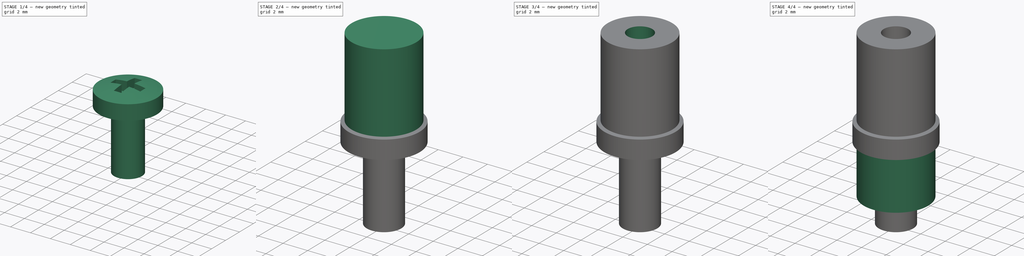
[diagram: build sequence overview — one tinted view per stage of 4, left to right]
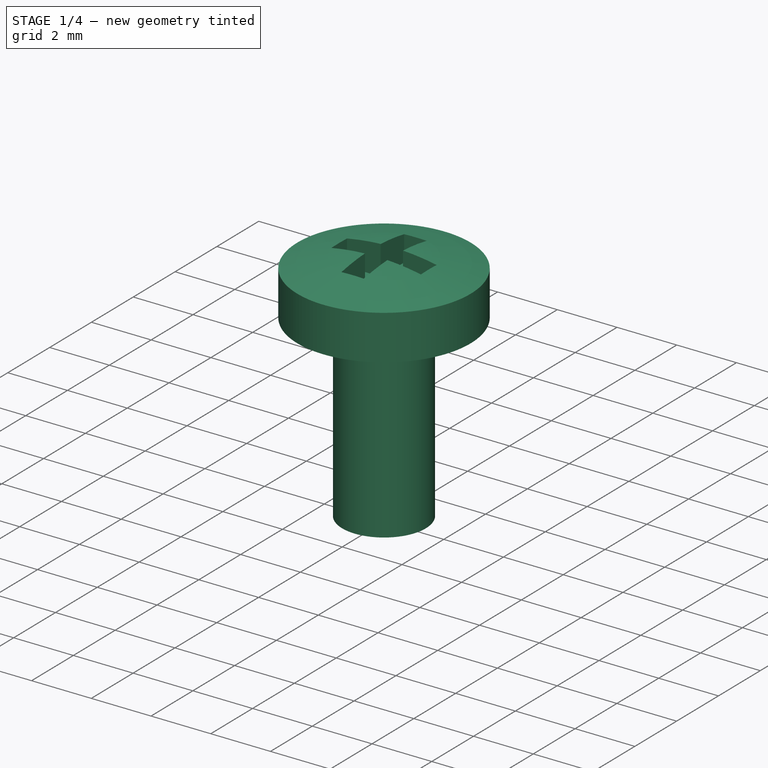
[diagram: stage 1 of 4 — iso view after this stage's code; geometry added in this stage tinted green]
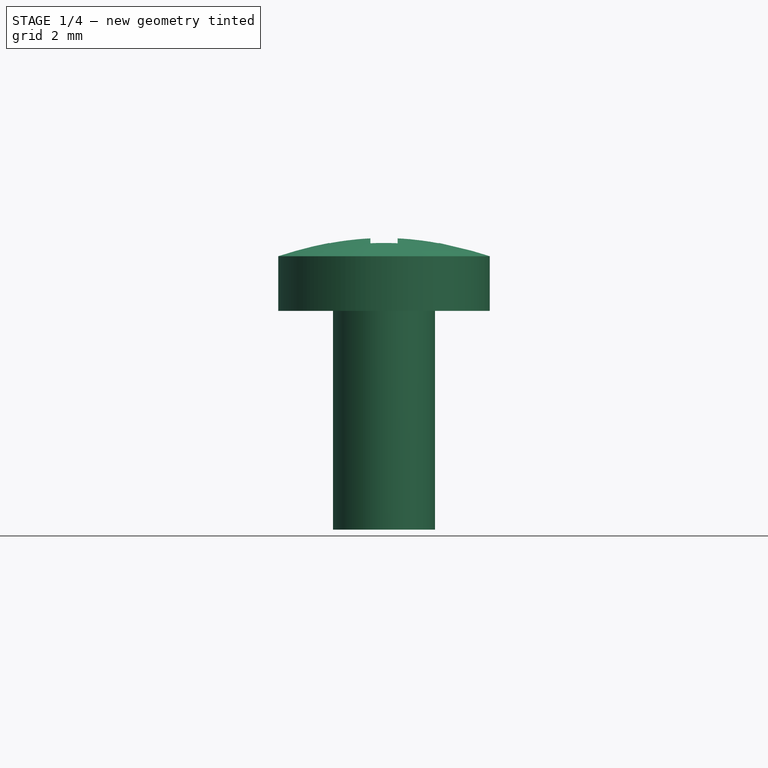
[diagram: stage 1 of 4 — front view after this stage's code; geometry added in this stage tinted green]
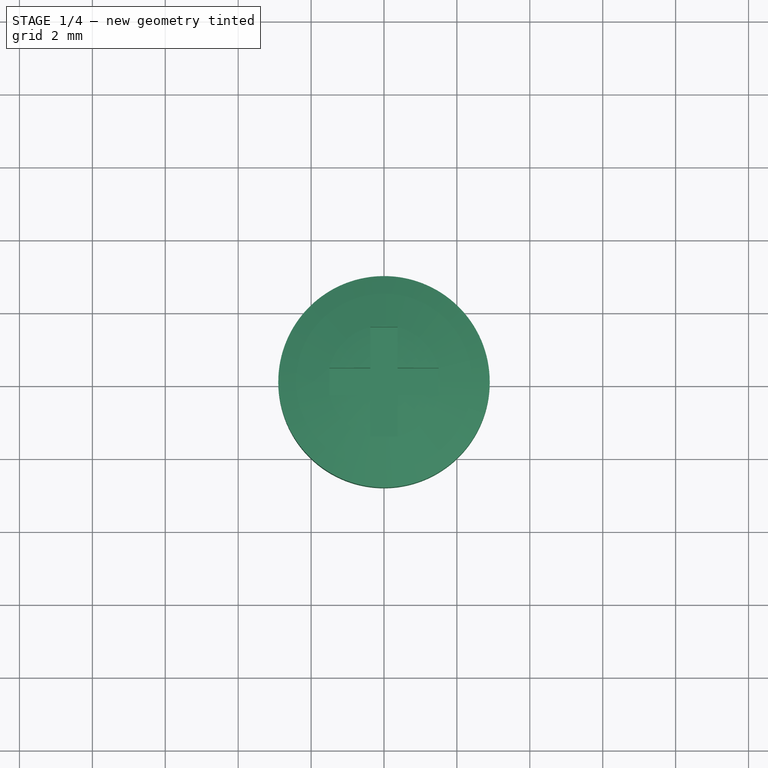
[diagram: stage 1 of 4 — top view after this stage's code; geometry added in this stage tinted green]
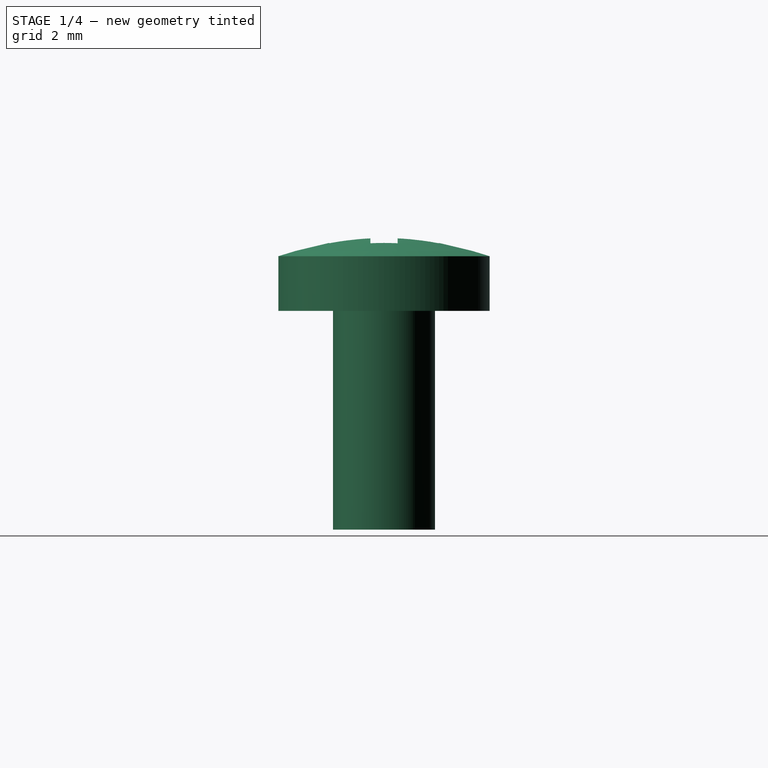
[diagram: stage 1 of 4 — right view after this stage's code; geometry added in this stage tinted green]
FCSTD DOCUMENT  (FreeCAD 0.18R16131 (Git))
Label: #8XX-XXX - Standoff Stack
License: All rights reserved
LicenseURL: http://en.wikipedia.org/wiki/All_rights_reserved
objects: Sketcher::SketchObject×12, PartDesign::Body×6, PartDesign::Pad×5, PartDesign::Pocket×5, PartDesign::Revolution×2
note: 42 computed .brp shape members not serialized (recipe doc carries the construction recipe); baked Part::Feature solids carry a one-line shape summary decoded from their .brp

FEATURE [PartDesign::Body] Body003  label="Screw_M3x6_T_2.0_Panhead"
  Group = -> [Sketch007,Revolution,Sketch008,Pocket003]
  Origin = -> Origin003
  Placement = pos=(0,0,11.4) rot=(0,0,1;0rad)
  Tip = -> Pocket003
FEATURE [Sketcher::SketchObject] Sketch009
  MapMode = 5
  Support = -> [XY_Plane004]
  sketch-geometry (2):
    g0: Circle CenterX=0 CenterY=0 CenterZ=0 NormalX=0 NormalY=0 NormalZ=1 AngleXU=0 Radius=1.5
    g1: Circle CenterX=0 CenterY=0 CenterZ=0 NormalX=0 NormalY=0 NormalZ=1 AngleXU=0 Radius=2.8
  constraints (4):
    c: Coincident(g0,g-1)
    c: Coincident(g1,g0)
    c: Diameter(g1) = 5.6
    c: Diameter(g0) = 3
FEATURE [PartDesign::Pad] Pad004
  Length = 1
  Length2 = 100
  Profile = -> Sketch009
  Type = 0
FEATURE [PartDesign::Body] Body004  label="Washer_M3_ID_3.0_OD_5.6_T_0.8_Plastic001"
  Group = -> [Sketch009,Pad004]
  Origin = -> Origin004
  Placement = pos=(0,0,10.4) rot=(0,0,1;0rad)
  Tip = -> Pad004
FEATURE [Sketcher::SketchObject] Sketch010
  MapMode = 5
  Placement = pos=(0,0,0) rot=(1,0,0;1.5708rad)
  Support = -> [XZ_Plane005]
  sketch-geometry (11):
    g0: LineSegment StartX=0 StartY=-6 StartZ=0 EndX=-1.4 EndY=-6 EndZ=0
    g1: LineSegment StartX=-1.4 StartY=-6 StartZ=0 EndX=-1.4 EndY=0 EndZ=0
    g2: LineSegment StartX=-1.4 StartY=0 StartZ=0 EndX=-2.9 EndY=0 EndZ=0
    g3: LineSegment StartX=-2.9 StartY=0 StartZ=0 EndX=-2.9 EndY=1.5 EndZ=0
    g4: LineSegment StartX=0 StartY=-6 StartZ=0 EndX=0 EndY=2 EndZ=0
    g5: Circle [constr] CenterX=0 CenterY=2 CenterZ=0 NormalX=0 NormalY=0 NormalZ=1 AngleXU=0 Radius=0.3
    g6: Circle [constr] CenterX=-1.27 CenterY=2.02886 CenterZ=0 NormalX=0 NormalY=0 NormalZ=1 AngleXU=0 Radius=0.3
    g7: Circle [constr] CenterX=-2.9 CenterY=1.5 CenterZ=0 NormalX=0 NormalY=0 NormalZ=1 AngleXU=0 Radius=0.3
    g8: BSplineCurve PolesCount=3 KnotsCount=2 Degree=2 IsPeriodic=0
    g9: GeomPoint [constr] X=0 Y=2 Z=0
    g10: GeomPoint [constr] X=-2.9 Y=1.5 Z=0
  constraints (26):
    c: PointOnObject(g0,g-2)
    c: Horizontal(g0)
    c: Coincident(g0,g1)
    c: PointOnObject(g1,g-1)
    c: Vertical(g1)
    c: Coincident(g1,g2)
    c: PointOnObject(g2,g-1)
    c: Coincident(g2,g3)
    c: Vertical(g3)
    c: Coincident(g0,g4)
    c: PointOnObject(g4,g-2)
    c: DistanceX(g0,g0) = 1.4
    c: DistanceX(g2,g-1) = 2.9
    c: DistanceY(g3,g3) = 1.5
    c: DistanceY(g-1,g4) = 2
    c: DistanceY(g0,g-1) = 6
    c: Coincident(g8,g4)
    c: Radius(g5) = 0.3
    c: Equal(g5,g6)
    c: Equal(g5,g7)
    c: Coincident(g8,g3)
    c: InternalAlignment(g5,g8)
    c: InternalAlignment(g6,g8)
    c: InternalAlignment(g7,g8)
    c: InternalAlignment(g9,g8)
    c: InternalAlignment(g10,g8)
FEATURE [PartDesign::Revolution] Revolution001
  Angle = 360
  Axis = (0,2e-16,1)
  Base = (0,0,0)
  Placement = pos=(0,0,0) rot=(1,0,0;1.5708rad)
  Profile = -> Sketch010
  ReferenceAxis = -> Sketch010 [V_Axis]
FEATURE [Sketcher::SketchObject] Sketch011
  AttachmentOffset = pos=(0,0,1) rot=(0,0,1;0rad)
  MapMode = 5
  Placement = pos=(0,0,1) rot=(0,0,1;0rad)
  Support = -> [XY_Plane005]
  sketch-geometry (12):
    g0: LineSegment StartX=0.375 StartY=1.5 StartZ=0 EndX=-0.375 EndY=1.5 EndZ=0
    g1: LineSegment StartX=-0.375 StartY=1.5 StartZ=0 EndX=-0.375 EndY=0.375 EndZ=0
    g2: LineSegment StartX=-0.375 StartY=0.375 StartZ=0 EndX=-1.5 EndY=0.375 EndZ=0
    g3: LineSegment StartX=-1.5 StartY=0.375 StartZ=0 EndX=-1.5 EndY=-0.375 EndZ=0
    g4: LineSegment StartX=-1.5 StartY=-0.375 StartZ=0 EndX=-0.375 EndY=-0.375 EndZ=0
    g5: LineSegment StartX=-0.375 StartY=-0.375 StartZ=0 EndX=-0.375 EndY=-1.5 EndZ=0
    g6: LineSegment StartX=-0.375 StartY=-1.5 StartZ=0 EndX=0.375 EndY=-1.5 EndZ=0
    g7: LineSegment StartX=0.375 StartY=-1.5 StartZ=0 EndX=0.375 EndY=-0.375 EndZ=0
    g8: LineSegment StartX=0.375 StartY=-0.375 StartZ=0 EndX=1.5 EndY=-0.375 EndZ=0
    g9: LineSegment StartX=1.5 StartY=-0.375 StartZ=0 EndX=1.5 EndY=0.375 EndZ=0
    g10: LineSegment StartX=1.5 StartY=0.375 StartZ=0 EndX=0.375 EndY=0.375 EndZ=0
    g11: LineSegment StartX=0.375 StartY=0.375 StartZ=0 EndX=0.375 EndY=1.5 EndZ=0
  constraints (32):
    c: Coincident(g0,g1)
    c: Vertical(g1)
    c: Coincident(g1,g2)
    c: Horizontal(g2)
    c: Coincident(g2,g3)
    c: Vertical(g3)
    c: Coincident(g3,g4)
    c: Horizontal(g4)
    c: Coincident(g4,g5)
    c: Coincident(g5,g6)
    c: Horizontal(g6)
    c: Coincident(g6,g7)
    c: Coincident(g7,g8)
    c: Horizontal(g8)
    c: Coincident(g8,g9)
    c: Coincident(g9,g10)
    c: Horizontal(g10)
    c: Coincident(g10,g11)
    c: Coincident(g11,g0)
    c: Vertical(g7)
    c: Symmetric(g0,g0,g-2)
    c: Symmetric(g9,g8,g-1)
    c: Equal(g0,g6)
    c: Equal(g9,g3)
    c: Equal(g10,g2)
    c: DistanceX(g2,g9) = 3
    c: Equal(g2,g4)
    c: DistanceY(g6,g0) = 3
    c: Symmetric(g0,g6,g-1)
    c: Symmetric(g9,g2,g-2)
    c: DistanceX(g0,g0) = 0.75
    c: DistanceY(g9,g9) = 0.75
FEATURE [PartDesign::Pocket] Pocket004
  BaseFeature = -> Revolution001
  Length = 5
  Length2 = 100
  Placement = pos=(0,0,0) rot=(1,0,0;1.5708rad)
  Profile = -> Sketch011
  Reversed = true
  Type = 1
FEATURE [PartDesign::Body] Body005  label="Screw_M3x6_T_2.0_Panhead001"
  Group = -> [Sketch010,Revolution001,Sketch011,Pocket004]
  Origin = -> Origin005
  Placement = pos=(0,-2.2e-15,-6.5) rot=(1,0,0;3.14159rad)
  Tip = -> Pocket004
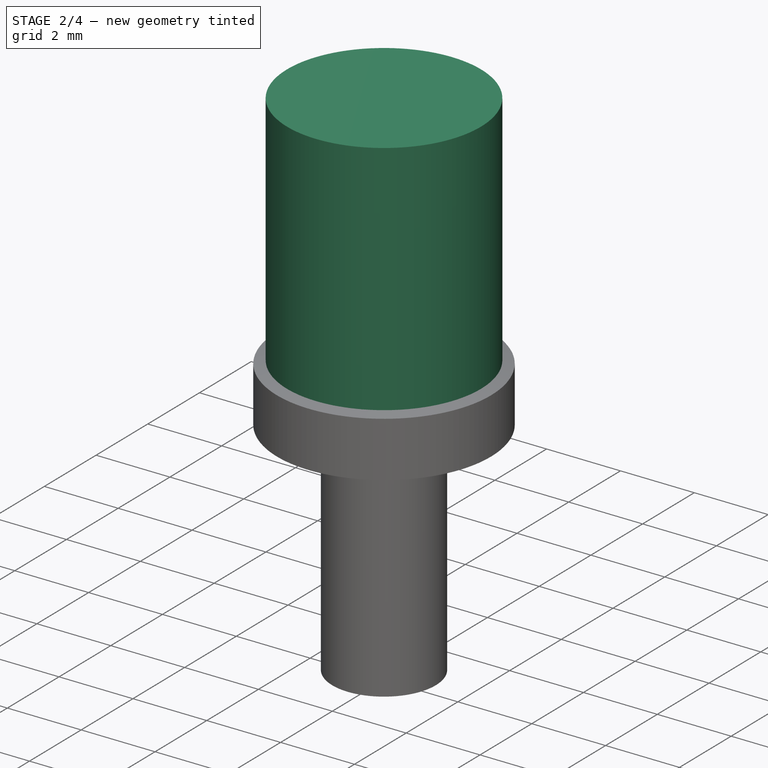
[diagram: stage 2 of 4 — iso view after this stage's code; geometry added in this stage tinted green]
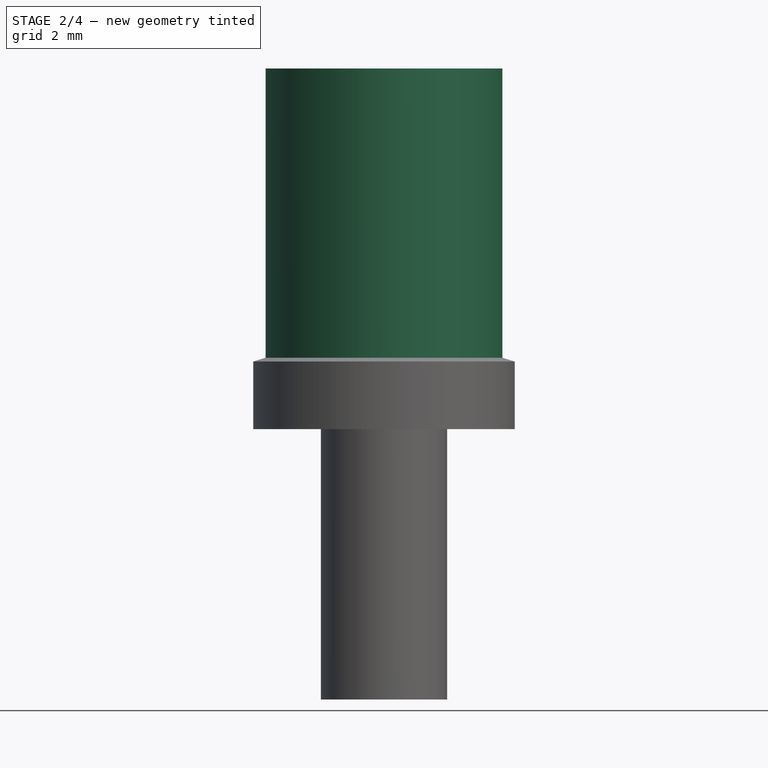
[diagram: stage 2 of 4 — front view after this stage's code; geometry added in this stage tinted green]
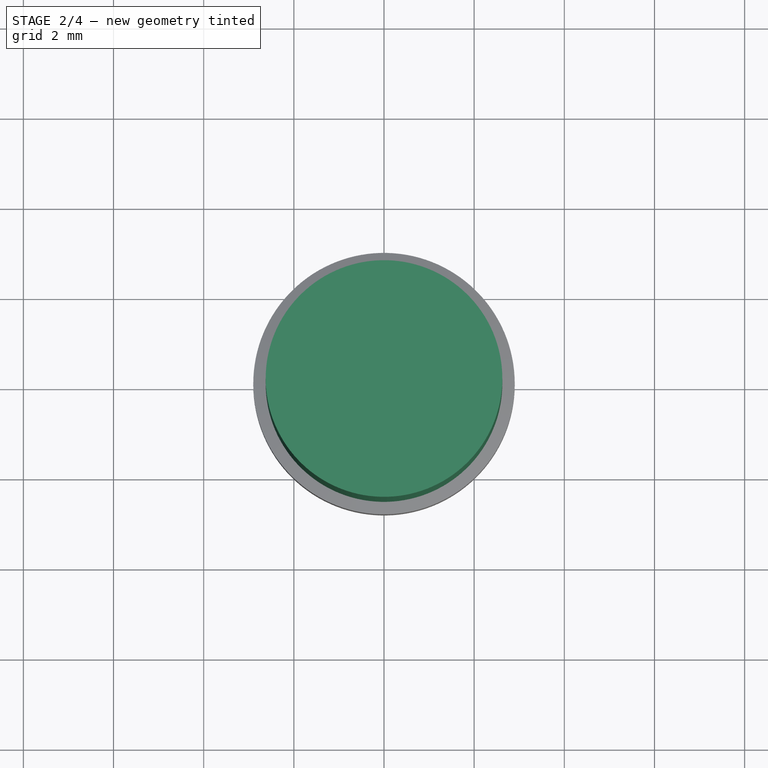
[diagram: stage 2 of 4 — top view after this stage's code; geometry added in this stage tinted green]
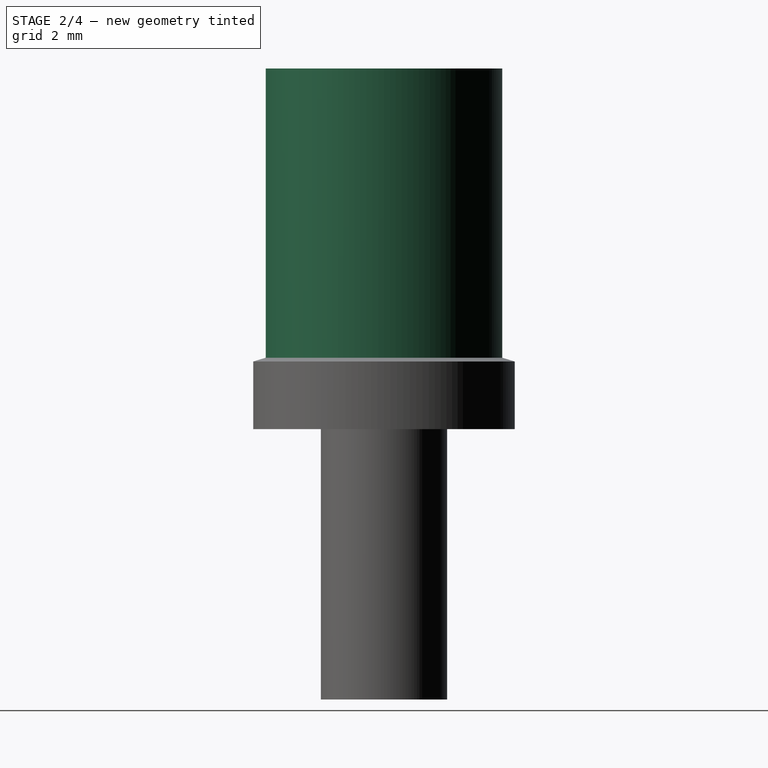
[diagram: stage 2 of 4 — right view after this stage's code; geometry added in this stage tinted green]
FEATURE [PartDesign::Body] Body001  label="Washer_M3_ID_3.0_OD_5.6_T_0.8_Plastic"
  Group = -> [Sketch003,Pad002]
  Origin = -> Origin001
  Tip = -> Pad002
FEATURE [Sketcher::SketchObject] Sketch004
  MapMode = 5
  Support = -> [XY_Plane002]
  sketch-geometry (1):
    g0: Circle CenterX=0 CenterY=0 CenterZ=0 NormalX=0 NormalY=0 NormalZ=1 AngleXU=0 Radius=2.625
  constraints (2):
    c: Coincident(g0,g-1)
    c: Diameter(g0) = 5.25
FEATURE [PartDesign::Pad] Pad003
  Length = 8
  Length2 = 100
  Profile = -> Sketch004
  Type = 0
FEATURE [PartDesign::Body] Body002  label="Standoff_Brass_FF_M2x8_OD_3"
  Group = -> [Sketch004,Pad003,Sketch005,Pocket001,Sketch006,Pocket002]
  Origin = -> Origin002
  Placement = pos=(0,0,0.8) rot=(0,0,1;0rad)
  Tip = -> Pocket002
FEATURE [Sketcher::SketchObject] Sketch007
  MapMode = 5
  Placement = pos=(0,0,0) rot=(1,0,0;1.5708rad)
  Support = -> [XZ_Plane003]
  sketch-geometry (11):
    g0: LineSegment StartX=0 StartY=-6 StartZ=0 EndX=-1.4 EndY=-6 EndZ=0
    g1: LineSegment StartX=-1.4 StartY=-6 StartZ=0 EndX=-1.4 EndY=0 EndZ=0
    g2: LineSegment StartX=-1.4 StartY=0 StartZ=0 EndX=-2.9 EndY=0 EndZ=0
    g3: LineSegment StartX=-2.9 StartY=0 StartZ=0 EndX=-2.9 EndY=1.5 EndZ=0
    g4: LineSegment StartX=0 StartY=-6 StartZ=0 EndX=0 EndY=2 EndZ=0
    g5: Circle [constr] CenterX=0 CenterY=2 CenterZ=0 NormalX=0 NormalY=0 NormalZ=1 AngleXU=0 Radius=0.3
    g6: Circle [constr] CenterX=-1.27 CenterY=2.02886 CenterZ=0 NormalX=0 NormalY=0 NormalZ=1 AngleXU=0 Radius=0.3
    g7: Circle [constr] CenterX=-2.9 CenterY=1.5 CenterZ=0 NormalX=0 NormalY=0 NormalZ=1 AngleXU=0 Radius=0.3
    g8: BSplineCurve PolesCount=3 KnotsCount=2 Degree=2 IsPeriodic=0
    g9: GeomPoint [constr] X=0 Y=2 Z=0
    g10: GeomPoint [constr] X=-2.9 Y=1.5 Z=0
  constraints (26):
    c: PointOnObject(g0,g-2)
    c: Horizontal(g0)
    c: Coincident(g0,g1)
    c: PointOnObject(g1,g-1)
    c: Vertical(g1)
    c: Coincident(g1,g2)
    c: PointOnObject(g2,g-1)
    c: Coincident(g2,g3)
    c: Vertical(g3)
    c: Coincident(g0,g4)
    c: PointOnObject(g4,g-2)
    c: DistanceX(g0,g0) = 1.4
    c: DistanceX(g2,g-1) = 2.9
    c: DistanceY(g3,g3) = 1.5
    c: DistanceY(g-1,g4) = 2
    c: DistanceY(g0,g-1) = 6
    c: Coincident(g8,g4)
    c: Radius(g5) = 0.3
    c: Equal(g5,g6)
    c: Equal(g5,g7)
    c: Coincident(g8,g3)
    c: InternalAlignment(g5,g8)
    c: InternalAlignment(g6,g8)
    c: InternalAlignment(g7,g8)
    c: InternalAlignment(g9,g8)
    c: InternalAlignment(g10,g8)
FEATURE [PartDesign::Revolution] Revolution
  Angle = 360
  Axis = (0,2e-16,1)
  Base = (0,0,0)
  Placement = pos=(0,0,0) rot=(1,0,0;1.5708rad)
  Profile = -> Sketch007
  ReferenceAxis = -> Sketch007 [V_Axis]
FEATURE [Sketcher::SketchObject] Sketch008
  AttachmentOffset = pos=(0,0,1) rot=(0,0,1;0rad)
  MapMode = 5
  Placement = pos=(0,0,1) rot=(0,0,1;0rad)
  Support = -> [XY_Plane003]
  sketch-geometry (12):
    g0: LineSegment StartX=0.375 StartY=1.5 StartZ=0 EndX=-0.375 EndY=1.5 EndZ=0
    g1: LineSegment StartX=-0.375 StartY=1.5 StartZ=0 EndX=-0.375 EndY=0.375 EndZ=0
    g2: LineSegment StartX=-0.375 StartY=0.375 StartZ=0 EndX=-1.5 EndY=0.375 EndZ=0
    g3: LineSegment StartX=-1.5 StartY=0.375 StartZ=0 EndX=-1.5 EndY=-0.375 EndZ=0
    g4: LineSegment StartX=-1.5 StartY=-0.375 StartZ=0 EndX=-0.375 EndY=-0.375 EndZ=0
    g5: LineSegment StartX=-0.375 StartY=-0.375 StartZ=0 EndX=-0.375 EndY=-1.5 EndZ=0
    g6: LineSegment StartX=-0.375 StartY=-1.5 StartZ=0 EndX=0.375 EndY=-1.5 EndZ=0
    g7: LineSegment StartX=0.375 StartY=-1.5 StartZ=0 EndX=0.375 EndY=-0.375 EndZ=0
    g8: LineSegment StartX=0.375 StartY=-0.375 StartZ=0 EndX=1.5 EndY=-0.375 EndZ=0
    g9: LineSegment StartX=1.5 StartY=-0.375 StartZ=0 EndX=1.5 EndY=0.375 EndZ=0
    g10: LineSegment StartX=1.5 StartY=0.375 StartZ=0 EndX=0.375 EndY=0.375 EndZ=0
    g11: LineSegment StartX=0.375 StartY=0.375 StartZ=0 EndX=0.375 EndY=1.5 EndZ=0
  constraints (32):
    c: Coincident(g0,g1)
    c: Vertical(g1)
    c: Coincident(g1,g2)
    c: Horizontal(g2)
    c: Coincident(g2,g3)
    c: Vertical(g3)
    c: Coincident(g3,g4)
    c: Horizontal(g4)
    c: Coincident(g4,g5)
    c: Coincident(g5,g6)
    c: Horizontal(g6)
    c: Coincident(g6,g7)
    c: Coincident(g7,g8)
    c: Horizontal(g8)
    c: Coincident(g8,g9)
    c: Coincident(g9,g10)
    c: Horizontal(g10)
    c: Coincident(g10,g11)
    c: Coincident(g11,g0)
    c: Vertical(g7)
    c: Symmetric(g0,g0,g-2)
    c: Symmetric(g9,g8,g-1)
    c: Equal(g0,g6)
    c: Equal(g9,g3)
    c: Equal(g10,g2)
    c: DistanceX(g2,g9) = 3
    c: Equal(g2,g4)
    c: DistanceY(g6,g0) = 3
    c: Symmetric(g0,g6,g-1)
    c: Symmetric(g9,g2,g-2)
    c: DistanceX(g0,g0) = 0.75
    c: DistanceY(g9,g9) = 0.75
FEATURE [PartDesign::Pocket] Pocket003
  BaseFeature = -> Revolution
  Length = 5
  Length2 = 100
  Placement = pos=(0,0,0) rot=(1,0,0;1.5708rad)
  Profile = -> Sketch008
  Reversed = true
  Type = 1
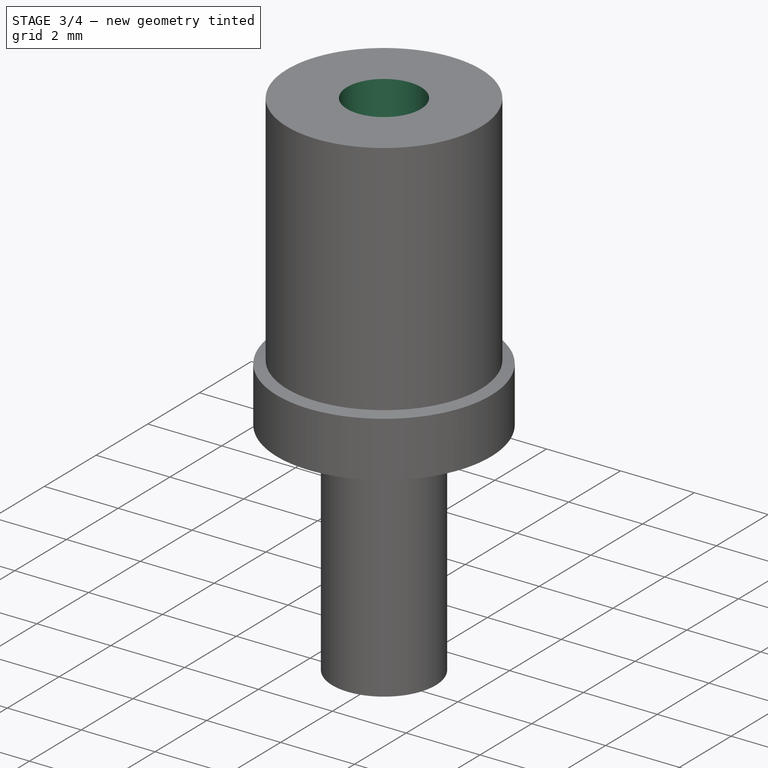
[diagram: stage 3 of 4 — iso view after this stage's code; geometry added in this stage tinted green]
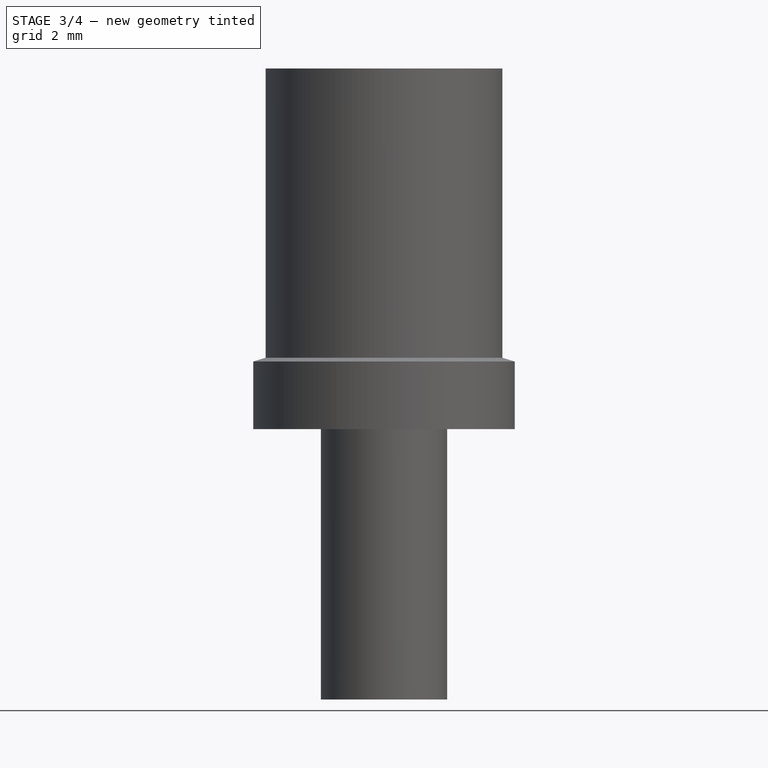
[diagram: stage 3 of 4 — front view after this stage's code; geometry added in this stage tinted green]
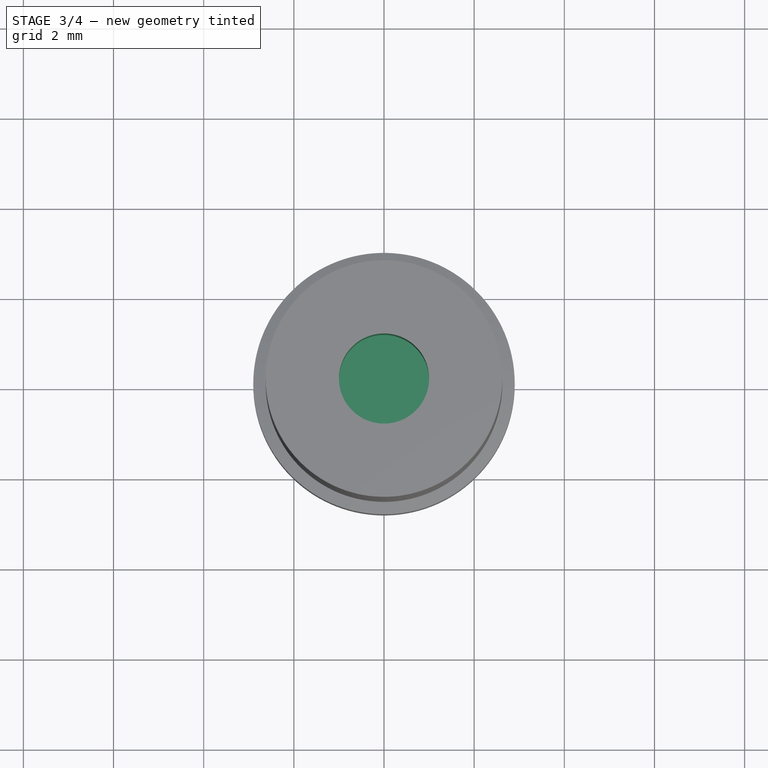
[diagram: stage 3 of 4 — top view after this stage's code; geometry added in this stage tinted green]
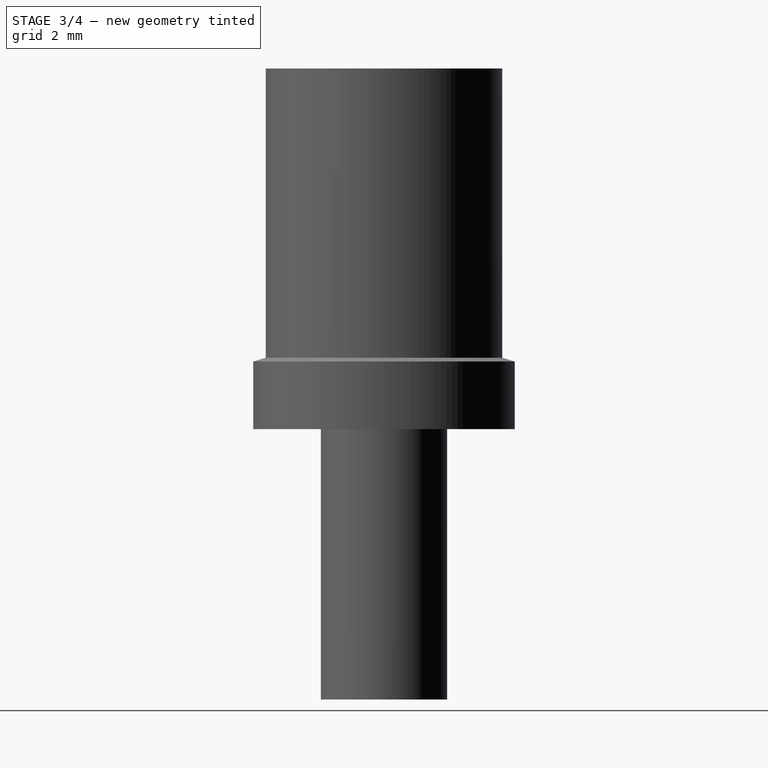
[diagram: stage 3 of 4 — right view after this stage's code; geometry added in this stage tinted green]
FEATURE [PartDesign::Body] Body  label="Standoff_Brass_MF_M2x4+3_OD_3"
  Group = -> [Sketch,Pad,Sketch001,Pad001,Sketch002,Pocket]
  Origin = -> Origin
  Tip = -> Pocket
FEATURE [Sketcher::SketchObject] Sketch003
  MapMode = 5
  Support = -> [XY_Plane001]
  sketch-geometry (2):
    g0: Circle CenterX=0 CenterY=0 CenterZ=0 NormalX=0 NormalY=0 NormalZ=1 AngleXU=0 Radius=1.5
    g1: Circle CenterX=0 CenterY=0 CenterZ=0 NormalX=0 NormalY=0 NormalZ=1 AngleXU=0 Radius=2.8
  constraints (4):
    c: Coincident(g0,g-1)
    c: Coincident(g1,g0)
    c: Diameter(g1) = 5.6
    c: Diameter(g0) = 3
FEATURE [PartDesign::Pad] Pad002
  Length = 1
  Length2 = 100
  Profile = -> Sketch003
  Type = 0
FEATURE [Sketcher::SketchObject] Sketch005
  MapMode = 5
  Placement = pos=(0,0,8) rot=(0,0,1;0rad)
  Support = -> [Pad003]
  sketch-geometry (1):
    g0: Circle CenterX=0 CenterY=0 CenterZ=0 NormalX=0 NormalY=0 NormalZ=1 AngleXU=0 Radius=1
  constraints (2):
    c: Coincident(g0,g-1)
    c: Diameter(g0) = 2
FEATURE [PartDesign::Pocket] Pocket001
  BaseFeature = -> Pad003
  Length = 1.9
  Length2 = 100
  Profile = -> Sketch005
  Type = 0
FEATURE [Sketcher::SketchObject] Sketch006
  MapMode = 5
  Placement = pos=(0,0,0) rot=(1,0,0;3.14159rad)
  Support = -> [Pocket001]
  sketch-geometry (1):
    g0: Circle CenterX=0 CenterY=0 CenterZ=0 NormalX=0 NormalY=0 NormalZ=1 AngleXU=0 Radius=1
  constraints (2):
    c: Coincident(g0,g-1)
    c: Diameter(g0) = 2
FEATURE [PartDesign::Pocket] Pocket002
  BaseFeature = -> Pocket001
  Length = 1.9
  Length2 = 100
  Profile = -> Sketch006
  Type = 0
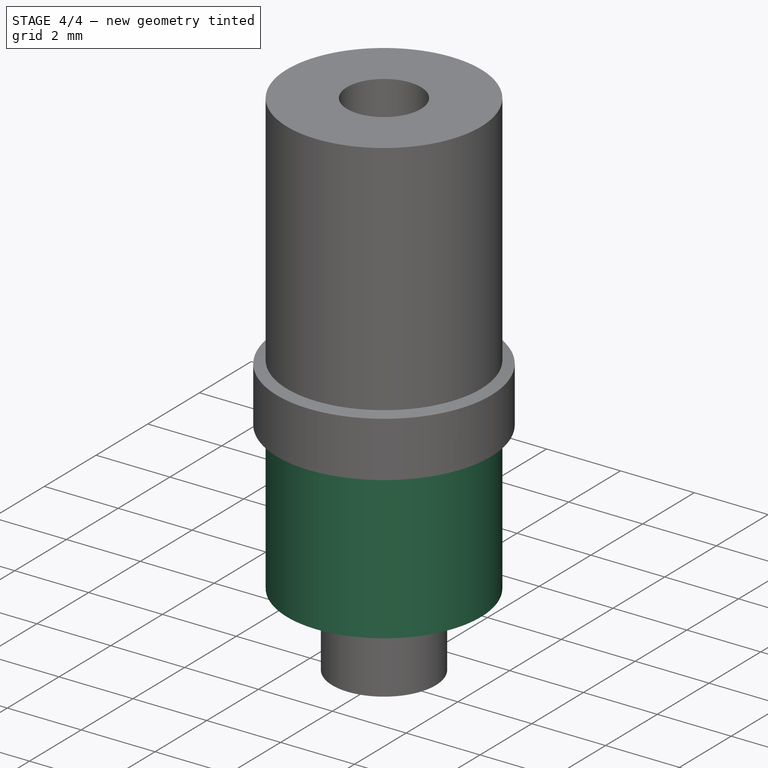
[diagram: stage 4 of 4 — iso view after this stage's code; geometry added in this stage tinted green]
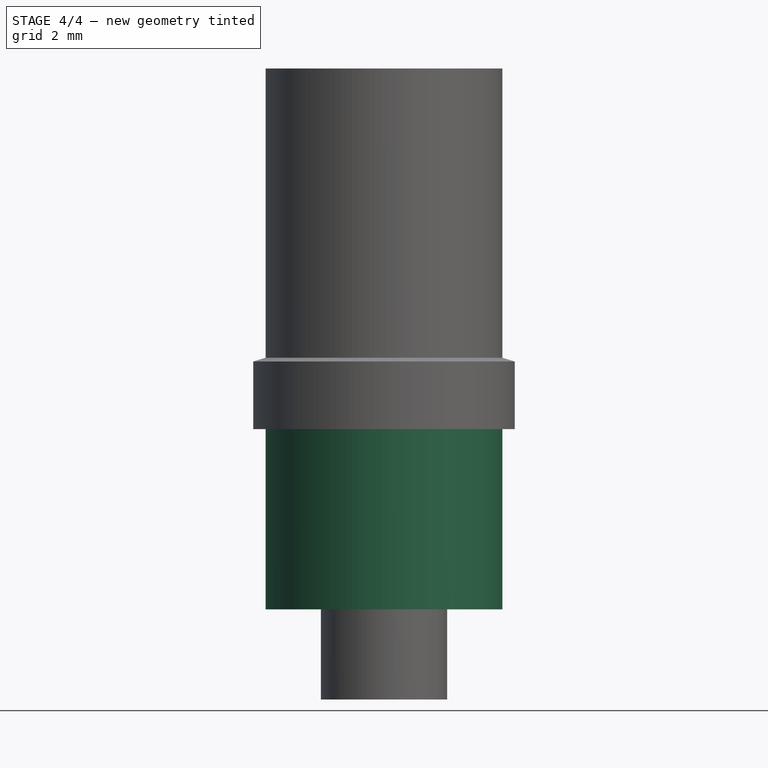
[diagram: stage 4 of 4 — front view after this stage's code; geometry added in this stage tinted green]
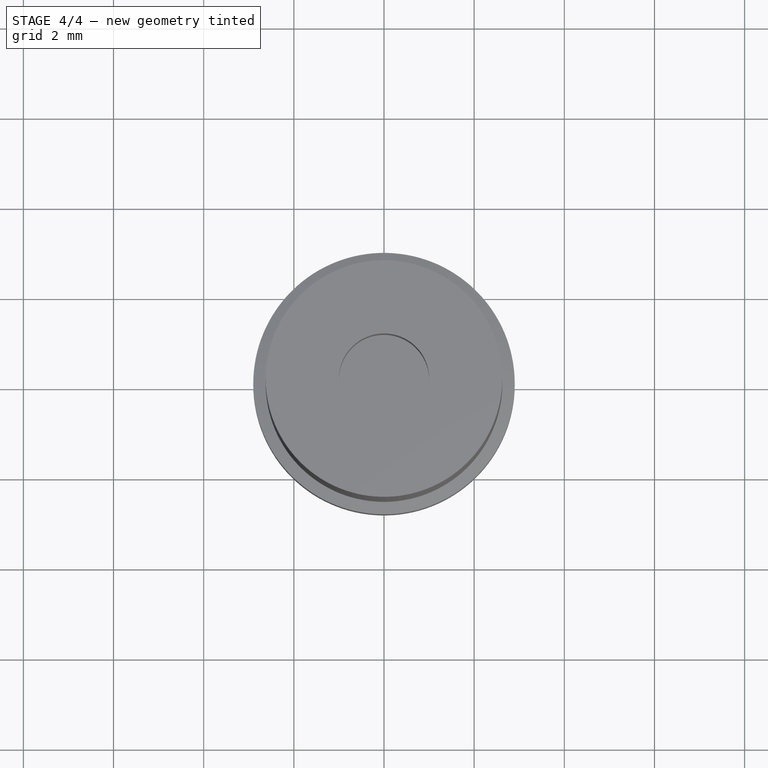
[diagram: stage 4 of 4 — top view after this stage's code; geometry added in this stage tinted green]
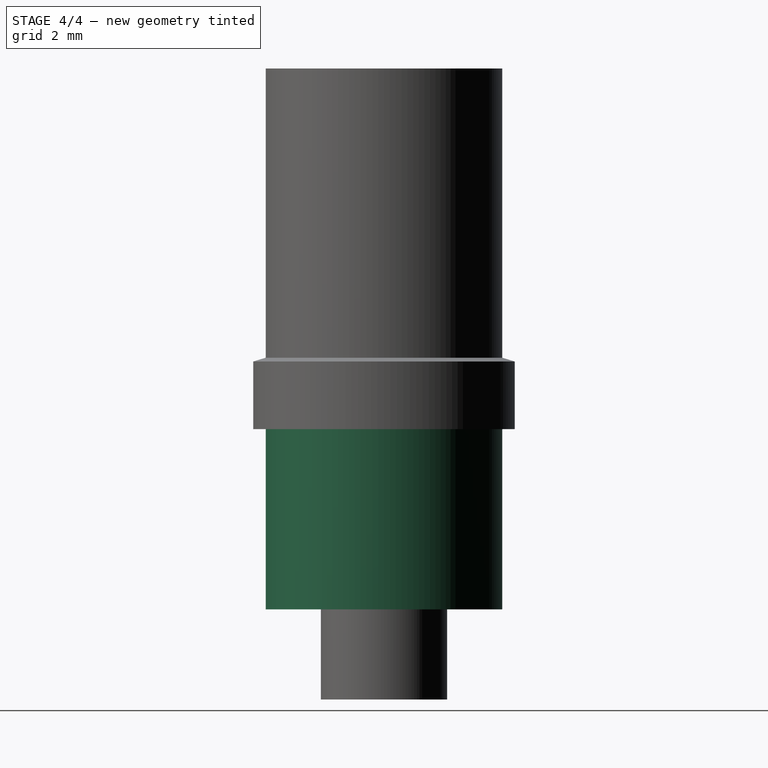
[diagram: stage 4 of 4 — right view after this stage's code; geometry added in this stage tinted green]
FEATURE [Sketcher::SketchObject] Sketch
  MapMode = 5
  Support = -> [XY_Plane]
  sketch-geometry (1):
    g0: Circle CenterX=0 CenterY=0 CenterZ=0 NormalX=0 NormalY=0 NormalZ=1 AngleXU=0 Radius=2.625
  constraints (2):
    c: Coincident(g0,g-1)
    c: Diameter(g0) = 5.25
FEATURE [PartDesign::Pad] Pad
  Length = 4
  Length2 = 100
  Profile = -> Sketch
  Reversed = true
  Type = 0
FEATURE [Sketcher::SketchObject] Sketch001
  MapMode = 5
  Support = -> [XY_Plane]
  sketch-geometry (1):
    g0: Circle CenterX=0 CenterY=0 CenterZ=0 NormalX=0 NormalY=0 NormalZ=1 AngleXU=0 Radius=0.85
  constraints (2):
    c: Coincident(g0,g-1)
    c: Diameter(g0) = 1.7
FEATURE [PartDesign::Pad] Pad001
  BaseFeature = -> Pad
  Length = 3
  Length2 = 100
  Profile = -> Sketch001
  Type = 0
FEATURE [Sketcher::SketchObject] Sketch002
  MapMode = 5
  Placement = pos=(0,0,-4) rot=(1,0,0;3.14159rad)
  Support = -> [Pad001]
  sketch-geometry (1):
    g0: Circle CenterX=0 CenterY=0 CenterZ=0 NormalX=0 NormalY=0 NormalZ=1 AngleXU=0 Radius=1
  constraints (2):
    c: Coincident(g0,g-1)
    c: Diameter(g0) = 2
FEATURE [PartDesign::Pocket] Pocket
  BaseFeature = -> Pad001
  Length = 2.5
  Length2 = 100
  Profile = -> Sketch002
  Type = 0
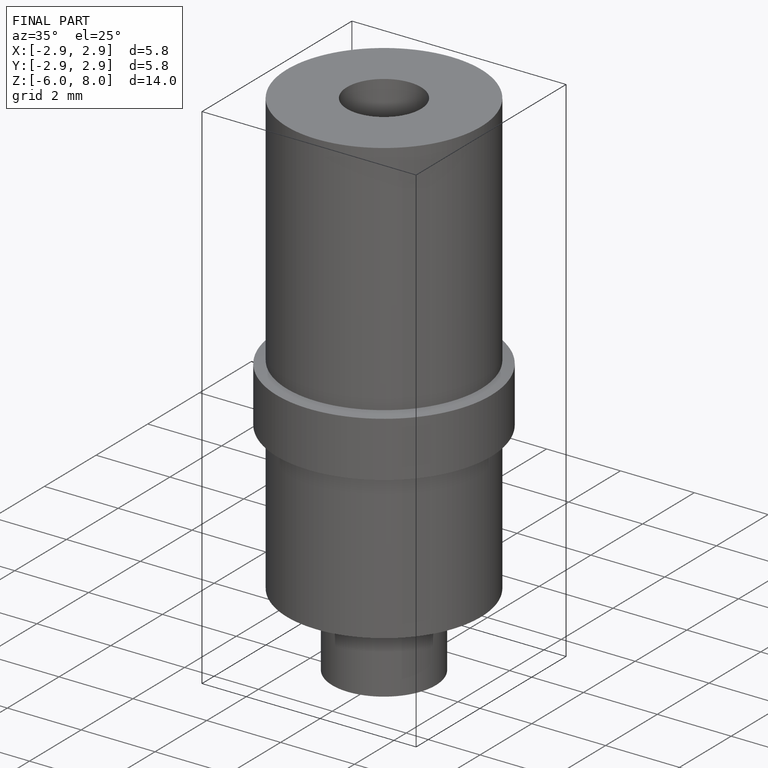
[diagram: finished part — iso view with bounding-box wireframe]
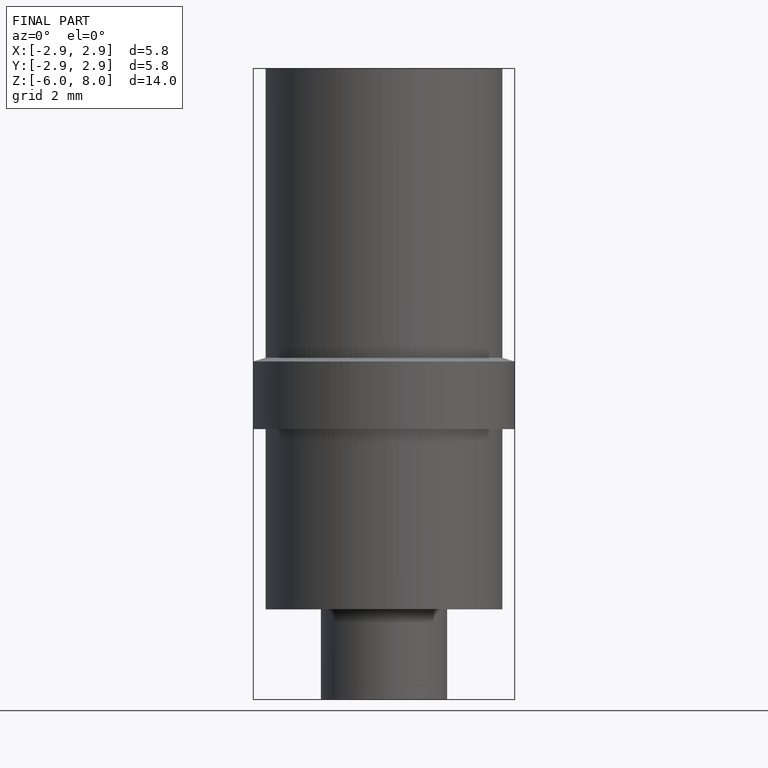
[diagram: finished part — front view with bounding-box wireframe]
